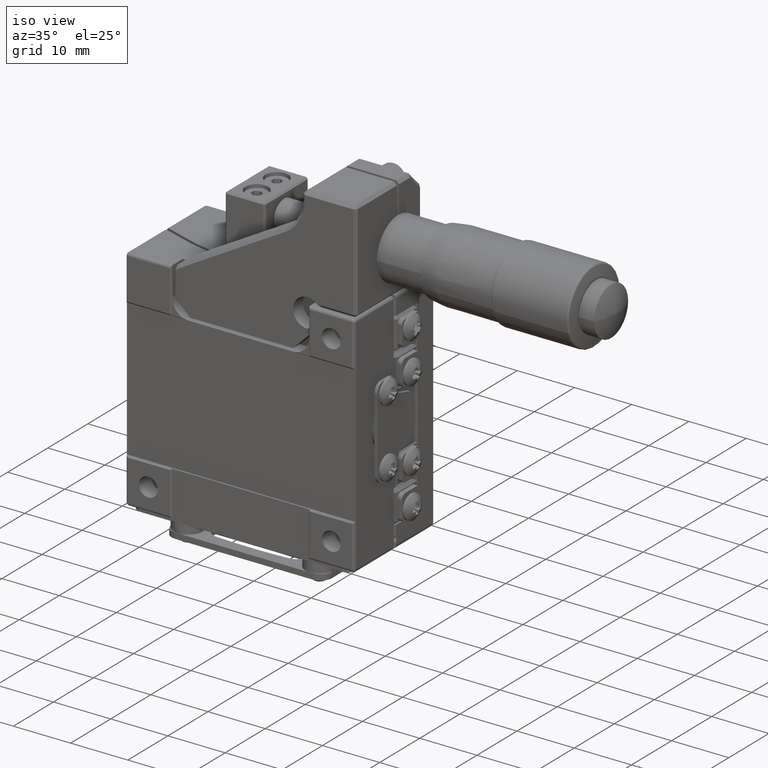
[diagram: clean part render]
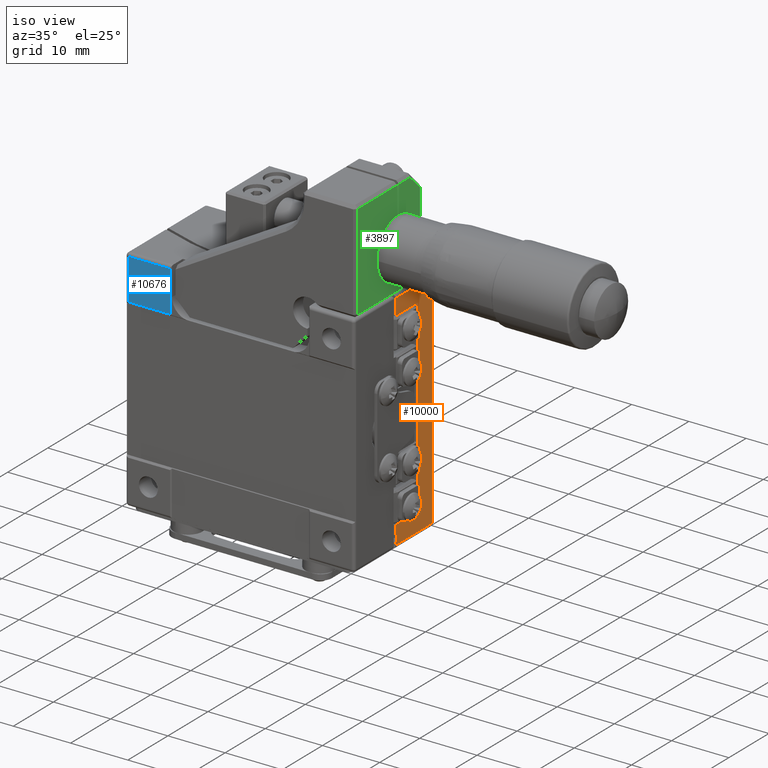
[diagram: same view with three faces highlighted in distinct colors, each labeled with its STEP entity id]
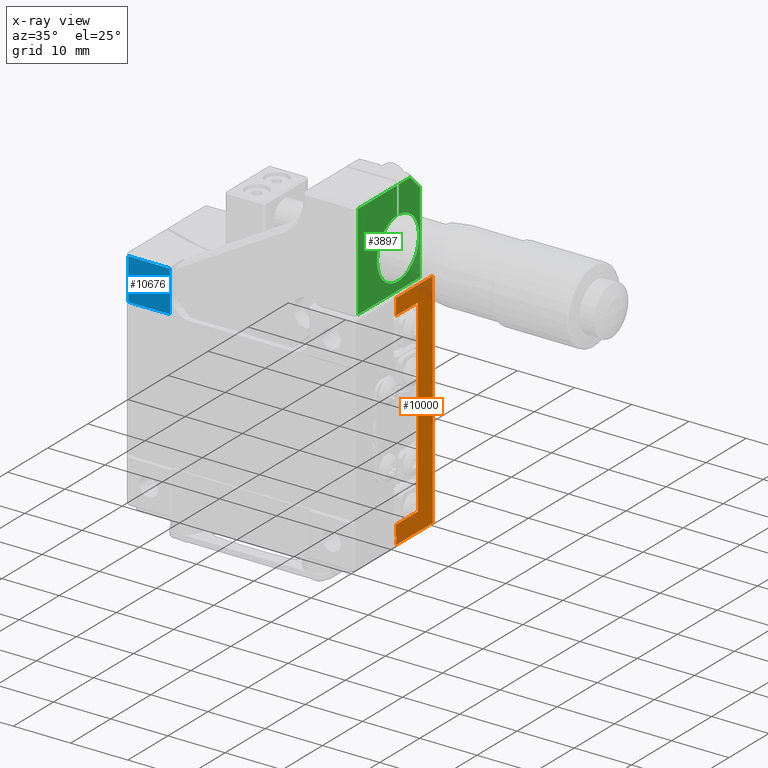
[diagram: x-ray of the same camera — body ghosted, the three highlighted faces saturated]
A machine part, iso view with three faces highlighted in distinct colors.
The next image is the same camera in x-ray (body ghosted, the three faces saturated) — at least one of them is partly hidden behind the body in this view.
Their STEP definitions:

[orange] entity #10000 — the highlighted planar face has unit normal (1, 0, 0).
#444 = LINE ( 'NONE', #16866, #43013 ) ;
#883 = CARTESIAN_POINT ( 'NONE',  ( 20.23052097740894695, -3.286285318551216417, -18.07069535098917257 ) ) ;
#2422 = DIRECTION ( 'NONE',  ( 0.000000000000000000, 1.000000000000000000, 0.000000000000000000 ) ) ;
#3019 = EDGE_CURVE ( 'NONE', #34072, #32164, #7965, .T. ) ;
#3056 = VERTEX_POINT ( 'NONE', #16825 ) ;
#3484 = DIRECTION ( 'NONE',  ( 0.000000000000000000, 0.000000000000000000, 1.000000000000000000 ) ) ;
#3493 = CARTESIAN_POINT ( 'NONE',  ( 20.23052097740894339, -3.208614427020371807, -18.55404601982977297 ) ) ;
#3654 = VECTOR ( 'NONE', #5808, 1000.000000000000000 ) ;
#3898 = ORIENTED_EDGE ( 'NONE', *, *, #4104, .T. ) ;
#4104 = EDGE_CURVE ( 'NONE', #27887, #32164, #24740, .T. ) ;
#4532 = LINE ( 'NONE', #9366, #5946 ) ;
#5269 = LINE ( 'NONE', #38653, #26385 ) ;
#5808 = DIRECTION ( 'NONE',  ( 0.000000000000000000, 0.000000000000000000, 1.000000000000000000 ) ) ;
#5946 = VECTOR ( 'NONE', #33621, 1000.000000000000000 ) ;
#6172 = CARTESIAN_POINT ( 'NONE',  ( 20.23052097740894695, 5.696749654218519865, -20.00000000000000000 ) ) ;
#6728 = CARTESIAN_POINT ( 'NONE',  ( 20.23052097740893984, -3.213274113322601711, -18.60755045568448196 ) ) ;
#7630 = ORIENTED_EDGE ( 'NONE', *, *, #3019, .F. ) ;
#7965 = LINE ( 'NONE', #37292, #24308 ) ;
#8084 = ORIENTED_EDGE ( 'NONE', *, *, #34866, .F. ) ;
#9366 = CARTESIAN_POINT ( 'NONE',  ( 20.23052097740894695, 2.012476433987770097, 20.00000000000000000 ) ) ;
#10000 = ADVANCED_FACE ( 'NONE', ( #37708 ), #18301, .T. ) ;
#10362 = VERTEX_POINT ( 'NONE', #22289 ) ;
#10428 = CARTESIAN_POINT ( 'NONE',  ( 20.23052097740894695, 5.696749654218519865, 19.50000000000000000 ) ) ;
#10520 = B_SPLINE_CURVE_WITH_KNOTS ( 'NONE', 3,
 ( #48417, #3493, #6728, #47882, #19107, #19921, #52481, #43838 ),
 .UNSPECIFIED., .F., .F.,
 ( 4, 2, 2, 4 ),
 ( 0.000000000000000000, 0.2500000000000001665, 0.5000000000000003331, 1.000000000000000000 ),
 .UNSPECIFIED. ) ;
#11847 = EDGE_CURVE ( 'NONE', #25445, #34167, #25463, .T. ) ;
#12525 = DIRECTION ( 'NONE',  ( 0.000000000000000000, 0.000000000000000000, 1.000000000000000000 ) ) ;
#14524 = VERTEX_POINT ( 'NONE', #44717 ) ;
#16532 = B_SPLINE_CURVE_WITH_KNOTS ( 'NONE', 3,
 ( #16762, #883, #33978, #33197 ),
 .UNSPECIFIED., .F., .F.,
 ( 4, 4 ),
 ( 0.000000000000000000, 1.000000000000000000 ),
 .UNSPECIFIED. ) ;
#16762 = CARTESIAN_POINT ( 'NONE',  ( 20.23052097740894695, -3.424314421433864997, -17.89999999999999858 ) ) ;
#16825 = CARTESIAN_POINT ( 'NONE',  ( 20.23052097740894695, -3.424314421433864997, -17.89999999999999858 ) ) ;
#16866 = CARTESIAN_POINT ( 'NONE',  ( 20.23052097740894695, -3.424314421433864997, 16.69999999999999929 ) ) ;
#17715 = EDGE_CURVE ( 'NONE', #10362, #14524, #5269, .T. ) ;
#17934 = ORIENTED_EDGE ( 'NONE', *, *, #17715, .F. ) ;
#18301 = PLANE ( 'NONE',  #33977 ) ;
#18915 = VECTOR ( 'NONE', #36053, 1000.000000000000000 ) ;
#19107 = CARTESIAN_POINT ( 'NONE',  ( 20.23052097740894695, -3.246293870153189154, -18.76701623548630948 ) ) ;
#19418 = CARTESIAN_POINT ( 'NONE',  ( 20.23052097740894695, -3.424314421433864997, 19.50000000000000000 ) ) ;
#19921 = CARTESIAN_POINT ( 'NONE',  ( 20.23052097740895405, -3.301004247635000333, -18.91929886286463258 ) ) ;
#20020 = CARTESIAN_POINT ( 'NONE',  ( 20.23052097740894695, -3.424314421433864997, -19.50000000000000000 ) ) ;
#21134 = ORIENTED_EDGE ( 'NONE', *, *, #43777, .F. ) ;
#21148 = CARTESIAN_POINT ( 'NONE',  ( 20.23052097740894695, 5.696749654218519865, -19.50000000000000000 ) ) ;
#21684 = CARTESIAN_POINT ( 'NONE',  ( 20.23052097740894695, -3.424314421433864997, -20.00000000000000000 ) ) ;
#22127 = VECTOR ( 'NONE', #34627, 1000.000000000000000 ) ;
#22159 = VECTOR ( 'NONE', #51657, 1000.000000000000000 ) ;
#22289 = CARTESIAN_POINT ( 'NONE',  ( 20.23052097740894695, -3.424314421433864997, -16.29999999999999716 ) ) ;
#22780 = LINE ( 'NONE', #42947, #22127 ) ;
#23910 = ORIENTED_EDGE ( 'NONE', *, *, #32977, .T. ) ;
#24308 = VECTOR ( 'NONE', #12525, 1000.000000000000000 ) ;
#24740 = LINE ( 'NONE', #48403, #18915 ) ;
#24875 = CARTESIAN_POINT ( 'NONE',  ( 20.23052097740894695, -3.424314421433860112, 16.69999999999999929 ) ) ;
#24918 = EDGE_CURVE ( 'NONE', #25445, #46589, #22780, .T. ) ;
#25201 = DIRECTION ( 'NONE',  ( 0.000000000000000000, -1.000000000000000000, 0.000000000000000000 ) ) ;
#25445 = VERTEX_POINT ( 'NONE', #20020 ) ;
#25463 = LINE ( 'NONE', #21684, #3654 ) ;
#25857 = CARTESIAN_POINT ( 'NONE',  ( 20.23052097740894695, -3.424314421433864997, -20.00000000000000000 ) ) ;
#26385 = VECTOR ( 'NONE', #50485, 1000.000000000000000 ) ;
#27887 = VERTEX_POINT ( 'NONE', #10428 ) ;
#28485 = VECTOR ( 'NONE', #3484, 1000.000000000000000 ) ;
#28742 = ORIENTED_EDGE ( 'NONE', *, *, #24918, .T. ) ;
#29258 = ORIENTED_EDGE ( 'NONE', *, *, #11847, .F. ) ;
#29418 = CARTESIAN_POINT ( 'NONE',  ( 20.23052097740894695, -3.424314421433935163, -19.09999999999999787 ) ) ;
#31138 = ORIENTED_EDGE ( 'NONE', *, *, #33541, .T. ) ;
#32164 = VERTEX_POINT ( 'NONE', #19418 ) ;
#32977 = EDGE_CURVE ( 'NONE', #3056, #52598, #16532, .T. ) ;
#33197 = CARTESIAN_POINT ( 'NONE',  ( 20.23052097740894695, -3.208614427020374915, -18.50000000000000000 ) ) ;
#33541 = EDGE_CURVE ( 'NONE', #46589, #27887, #35252, .T. ) ;
#33621 = DIRECTION ( 'NONE',  ( 0.000000000000000000, 0.000000000000000000, 1.000000000000000000 ) ) ;
#33673 = DIRECTION ( 'NONE',  ( 1.000000000000000000, 0.000000000000000000, 0.000000000000000000 ) ) ;
#33977 = AXIS2_PLACEMENT_3D ( 'NONE', #25857, #33673, #2422 ) ;
#33978 = CARTESIAN_POINT ( 'NONE',  ( 20.23052097740894695, -3.208614427020372251, -18.28061739433402266 ) ) ;
#34072 = VERTEX_POINT ( 'NONE', #24875 ) ;
#34167 = VERTEX_POINT ( 'NONE', #29418 ) ;
#34627 = DIRECTION ( 'NONE',  ( 0.000000000000000000, 1.000000000000000000, 0.000000000000000000 ) ) ;
#34866 = EDGE_CURVE ( 'NONE', #14524, #40898, #4532, .T. ) ;
#35252 = LINE ( 'NONE', #6172, #22159 ) ;
#36053 = DIRECTION ( 'NONE',  ( 0.000000000000000000, -1.000000000000000000, 0.000000000000000000 ) ) ;
#37292 = CARTESIAN_POINT ( 'NONE',  ( 20.23052097740894695, -3.424314421433864997, -20.00000000000000000 ) ) ;
#37708 = FACE_OUTER_BOUND ( 'NONE', #44609, .T. ) ;
#38156 = CARTESIAN_POINT ( 'NONE',  ( 20.23052097740894695, -3.208614427020374915, -18.50000000000000000 ) ) ;
#38653 = CARTESIAN_POINT ( 'NONE',  ( 20.23052097740894695, -3.424314421433864997, -16.29999999999999716 ) ) ;
#39540 = CARTESIAN_POINT ( 'NONE',  ( 20.23052097740894695, -3.424314421433864997, -20.00000000000000000 ) ) ;
#40898 = VERTEX_POINT ( 'NONE', #48818 ) ;
#41304 = ORIENTED_EDGE ( 'NONE', *, *, #46139, .F. ) ;
#42084 = EDGE_CURVE ( 'NONE', #52598, #34167, #10520, .T. ) ;
#42947 = CARTESIAN_POINT ( 'NONE',  ( 20.23052097740894695, 6.196749654218518977, -19.50000000000000000 ) ) ;
#43013 = VECTOR ( 'NONE', #25201, 1000.000000000000000 ) ;
#43777 = EDGE_CURVE ( 'NONE', #40898, #34072, #444, .T. ) ;
#43838 = CARTESIAN_POINT ( 'NONE',  ( 20.23052097740894695, -3.424314421433935163, -19.09999999999999787 ) ) ;
#44609 = EDGE_LOOP ( 'NONE', ( #8084, #17934, #41304, #23910, #52098, #29258, #28742, #31138, #3898, #7630, #21134 ) ) ;
#44717 = CARTESIAN_POINT ( 'NONE',  ( 20.23052097740894695, 2.012476433987770097, -16.29999999999999716 ) ) ;
#46139 = EDGE_CURVE ( 'NONE', #3056, #10362, #48675, .T. ) ;
#46589 = VERTEX_POINT ( 'NONE', #21148 ) ;
#47882 = CARTESIAN_POINT ( 'NONE',  ( 20.23052097740893984, -3.231912858531518662, -18.71347615944412723 ) ) ;
#48403 = CARTESIAN_POINT ( 'NONE',  ( 20.23052097740894695, -3.424314421433864997, 19.50000000000000000 ) ) ;
#48417 = CARTESIAN_POINT ( 'NONE',  ( 20.23052097740894695, -3.208614427020374915, -18.50000000000000000 ) ) ;
#48675 = LINE ( 'NONE', #39540, #28485 ) ;
#48818 = CARTESIAN_POINT ( 'NONE',  ( 20.23052097740894695, 2.012476433987770097, 16.69999999999999929 ) ) ;
#50485 = DIRECTION ( 'NONE',  ( 0.000000000000000000, 1.000000000000000000, 0.000000000000000000 ) ) ;
#51657 = DIRECTION ( 'NONE',  ( 0.000000000000000000, 0.000000000000000000, 1.000000000000000000 ) ) ;
#52098 = ORIENTED_EDGE ( 'NONE', *, *, #42084, .T. ) ;
#52481 = CARTESIAN_POINT ( 'NONE',  ( 20.23052097740894339, -3.354265500563936353, -19.01337315910495818 ) ) ;
#52598 = VERTEX_POINT ( 'NONE', #38156 ) ;

[blue] entity #10676 — the highlighted planar face has unit normal (0, -1, 0).
#3261 = VERTEX_POINT ( 'NONE', #39652 ) ;
#4899 = VECTOR ( 'NONE', #10250, 1000.000000000000000 ) ;
#6568 = CARTESIAN_POINT ( 'NONE',  ( -11.96947902259105945, -13.80325034578148014, -20.00000000000000000 ) ) ;
#9702 = CARTESIAN_POINT ( 'NONE',  ( 20.23052097740894695, -13.80325034578146060, 12.30000000000000071 ) ) ;
#10250 = DIRECTION ( 'NONE',  ( -1.000000000000000000, -2.312964634635744929E-16, 0.000000000000000000 ) ) ;
#10431 = DIRECTION ( 'NONE',  ( 0.000000000000000000, 0.000000000000000000, -1.000000000000000000 ) ) ;
#10676 = ADVANCED_FACE ( 'NONE', ( #13341 ), #21675, .T. ) ;
#13341 = FACE_OUTER_BOUND ( 'NONE', #16424, .T. ) ;
#14208 = CARTESIAN_POINT ( 'NONE',  ( -19.26947902259104950, -13.80325034578148014, -20.00000000000000000 ) ) ;
#14230 = AXIS2_PLACEMENT_3D ( 'NONE', #25457, #37851, #45880 ) ;
#14448 = VERTEX_POINT ( 'NONE', #22688 ) ;
#14916 = DIRECTION ( 'NONE',  ( 0.000000000000000000, 0.000000000000000000, 1.000000000000000000 ) ) ;
#16424 = EDGE_LOOP ( 'NONE', ( #23648, #21420, #16752, #24587 ) ) ;
#16752 = ORIENTED_EDGE ( 'NONE', *, *, #34992, .T. ) ;
#18789 = LINE ( 'NONE', #14208, #51508 ) ;
#19215 = LINE ( 'NONE', #6568, #53036 ) ;
#19480 = CARTESIAN_POINT ( 'NONE',  ( -11.96947902259105945, -13.80325034578148014, 19.50000000000000000 ) ) ;
#21420 = ORIENTED_EDGE ( 'NONE', *, *, #52191, .T. ) ;
#21675 = PLANE ( 'NONE',  #14230 ) ;
#22140 = VECTOR ( 'NONE', #38777, 1000.000000000000000 ) ;
#22688 = CARTESIAN_POINT ( 'NONE',  ( -19.26947902259104950, -13.80325034578148014, 19.50000000000000000 ) ) ;
#23648 = ORIENTED_EDGE ( 'NONE', *, *, #32692, .T. ) ;
#24580 = CARTESIAN_POINT ( 'NONE',  ( -19.26947902259104950, -13.80325034578148014, 12.30000000000000071 ) ) ;
#24587 = ORIENTED_EDGE ( 'NONE', *, *, #24609, .F. ) ;
#24609 = EDGE_CURVE ( 'NONE', #3261, #38553, #47117, .T. ) ;
#25457 = CARTESIAN_POINT ( 'NONE',  ( -19.76947902259104950, -13.80325034578148014, -20.00000000000000000 ) ) ;
#25492 = VERTEX_POINT ( 'NONE', #19480 ) ;
#26127 = LINE ( 'NONE', #50339, #22140 ) ;
#32692 = EDGE_CURVE ( 'NONE', #3261, #25492, #19215, .T. ) ;
#34992 = EDGE_CURVE ( 'NONE', #14448, #38553, #18789, .T. ) ;
#37851 = DIRECTION ( 'NONE',  ( 1.734723475976804876E-16, -1.000000000000000000, 0.000000000000000000 ) ) ;
#38553 = VERTEX_POINT ( 'NONE', #24580 ) ;
#38777 = DIRECTION ( 'NONE',  ( -1.000000000000000000, -1.734723475976804876E-16, 0.000000000000000000 ) ) ;
#39652 = CARTESIAN_POINT ( 'NONE',  ( -11.96947902259103991, -13.80325034578148014, 12.30000000000000071 ) ) ;
#45880 = DIRECTION ( 'NONE',  ( 0.000000000000000000, 0.000000000000000000, -1.000000000000000000 ) ) ;
#47117 = LINE ( 'NONE', #9702, #4899 ) ;
#50339 = CARTESIAN_POINT ( 'NONE',  ( -19.76947902259104950, -13.80325034578148014, 19.50000000000000000 ) ) ;
#51508 = VECTOR ( 'NONE', #10431, 1000.000000000000000 ) ;
#52191 = EDGE_CURVE ( 'NONE', #25492, #14448, #26127, .T. ) ;
#53036 = VECTOR ( 'NONE', #14916, 1000.000000000000000 ) ;

[green] entity #3897 — the highlighted planar face has unit normal (-1, 0, -0).
#5 = ORIENTED_EDGE ( 'NONE', *, *, #5908, .T. ) ;
#169 = EDGE_CURVE ( 'NONE', #15896, #21938, #52423, .T. ) ;
#548 = DIRECTION ( 'NONE',  ( 0.000000000000000000, -1.000000000000000000, 0.000000000000000000 ) ) ;
#1297 = DIRECTION ( 'NONE',  ( 1.343422115225469913E-32, 1.000000000000000000, -1.445602896647339903E-16 ) ) ;
#2033 = CARTESIAN_POINT ( 'NONE',  ( 20.23052097740874800, -12.90325034578147978, 20.50000000000000000 ) ) ;
#2426 = CARTESIAN_POINT ( 'NONE',  ( 20.23052097740874800, 0.08964287303193579914, 37.20170592217080241 ) ) ;
#2924 = CARTESIAN_POINT ( 'NONE',  ( 20.23052097740859878, -2.903250345781485109, 27.20170592217100136 ) ) ;
#3541 = LINE ( 'NONE', #19975, #50505 ) ;
#3861 = EDGE_CURVE ( 'NONE', #47135, #30293, #30413, .T. ) ;
#3897 = ADVANCED_FACE ( 'NONE', ( #47339 ), #10470, .F. ) ;
#5264 = DIRECTION ( 'NONE',  ( -9.293161478447179278E-17, 0.000000000000000000, 1.000000000000000000 ) ) ;
#5430 = ORIENTED_EDGE ( 'NONE', *, *, #27878, .T. ) ;
#5881 = VERTEX_POINT ( 'NONE', #19534 ) ;
#5908 = EDGE_CURVE ( 'NONE', #30293, #29347, #6876, .T. ) ;
#5914 = DIRECTION ( 'NONE',  ( -1.000000000000000000, 0.000000000000000000, -9.293161478447179278E-17 ) ) ;
#6164 = DIRECTION ( 'NONE',  ( -1.000000000000000000, 0.000000000000000000, 6.106226608968590048E-15 ) ) ;
#6168 = DIRECTION ( 'NONE',  ( -9.293161478447179278E-17, 0.000000000000000000, 1.000000000000000000 ) ) ;
#6384 = CARTESIAN_POINT ( 'NONE',  ( 20.23052097740874800, 3.096749654218525105, 20.50000000000000000 ) ) ;
#6782 = LINE ( 'NONE', #31832, #27165 ) ;
#6876 = LINE ( 'NONE', #14691, #29265 ) ;
#6918 = ORIENTED_EDGE ( 'NONE', *, *, #31654, .T. ) ;
#7206 = VERTEX_POINT ( 'NONE', #32976 ) ;
#10154 = CIRCLE ( 'NONE', #46974, 5.250000000000000000 ) ;
#10467 = DIRECTION ( 'NONE',  ( 0.000000000000000000, 1.000000000000000000, 0.000000000000000000 ) ) ;
#10470 = PLANE ( 'NONE',  #31813 ) ;
#10610 = ORIENTED_EDGE ( 'NONE', *, *, #169, .T. ) ;
#12519 = DIRECTION ( 'NONE',  ( 0.000000000000000000, 1.000000000000000000, 0.000000000000000000 ) ) ;
#12732 = LINE ( 'NONE', #29153, #32226 ) ;
#12946 = VECTOR ( 'NONE', #1297, 1000.000000000000000 ) ;
#14691 = CARTESIAN_POINT ( 'NONE',  ( 20.23052097740874800, -12.90325034578147978, 18.70170592217079886 ) ) ;
#15896 = VERTEX_POINT ( 'NONE', #39573 ) ;
#16818 = VERTEX_POINT ( 'NONE', #52289 ) ;
#17089 = CARTESIAN_POINT ( 'NONE',  ( 20.23052097740859878, -2.903250345781485109, 27.20170592217100136 ) ) ;
#17230 = CARTESIAN_POINT ( 'NONE',  ( 20.23052097740874800, -13.40325034578147978, 37.20170592217080241 ) ) ;
#18753 = CARTESIAN_POINT ( 'NONE',  ( 20.23052097740874800, 2.596749654218525105, 34.69459914098420228 ) ) ;
#19534 = CARTESIAN_POINT ( 'NONE',  ( 20.23052097740859878, -8.153250345781478003, 27.20170592217069938 ) ) ;
#19975 = CARTESIAN_POINT ( 'NONE',  ( 20.23052097740874800, -2.653250345781475339, 37.20170592217080241 ) ) ;
#20197 = LINE ( 'NONE', #32587, #39557 ) ;
#20301 = DIRECTION ( 'NONE',  ( 9.293161478447179278E-17, 0.000000000000000000, -1.000000000000000000 ) ) ;
#20605 = EDGE_CURVE ( 'NONE', #47135, #16818, #12732, .T. ) ;
#21938 = VERTEX_POINT ( 'NONE', #22939 ) ;
#21979 = EDGE_CURVE ( 'NONE', #31274, #34555, #6782, .T. ) ;
#22335 = ORIENTED_EDGE ( 'NONE', *, *, #20605, .F. ) ;
#22939 = CARTESIAN_POINT ( 'NONE',  ( 20.23052097740859878, 2.346749654218514891, 27.20170592217069938 ) ) ;
#23304 = DIRECTION ( 'NONE',  ( 9.293161478447179278E-17, 0.000000000000000000, -1.000000000000000000 ) ) ;
#24370 = ORIENTED_EDGE ( 'NONE', *, *, #25140, .T. ) ;
#25140 = EDGE_CURVE ( 'NONE', #7206, #31274, #45332, .T. ) ;
#27165 = VECTOR ( 'NONE', #35051, 999.9999999999998863 ) ;
#27878 = EDGE_CURVE ( 'NONE', #29347, #7206, #38707, .T. ) ;
#29153 = CARTESIAN_POINT ( 'NONE',  ( 20.23052097740874800, -3.153250345781475339, 39.03977847505665011 ) ) ;
#29213 = AXIS2_PLACEMENT_3D ( 'NONE', #2924, #6164, #10467 ) ;
#29219 = VECTOR ( 'NONE', #548, 1000.000000000000000 ) ;
#29249 = EDGE_CURVE ( 'NONE', #15896, #40185, #20197, .T. ) ;
#29265 = VECTOR ( 'NONE', #23304, 1000.000000000000000 ) ;
#29347 = VERTEX_POINT ( 'NONE', #2033 ) ;
#29696 = CARTESIAN_POINT ( 'NONE',  ( 20.23052097740874800, -3.153250345781475339, 37.20170592217080241 ) ) ;
#30293 = VERTEX_POINT ( 'NONE', #39828 ) ;
#30413 = LINE ( 'NONE', #17230, #29219 ) ;
#31274 = VERTEX_POINT ( 'NONE', #18753 ) ;
#31654 = EDGE_CURVE ( 'NONE', #21938, #5881, #36589, .T. ) ;
#31813 = AXIS2_PLACEMENT_3D ( 'NONE', #35246, #5914, #6168 ) ;
#31829 = DIRECTION ( 'NONE',  ( 0.000000000000000000, -1.000000000000000000, 0.000000000000000000 ) ) ;
#31832 = CARTESIAN_POINT ( 'NONE',  ( 20.23052097740874800, -0.05680373637479380067, 37.34815253157749737 ) ) ;
#32226 = VECTOR ( 'NONE', #20301, 1000.000000000000000 ) ;
#32587 = CARTESIAN_POINT ( 'NONE',  ( 20.23052097740874800, -2.653250345781475339, 39.03977847505665011 ) ) ;
#32976 = CARTESIAN_POINT ( 'NONE',  ( 20.23052097740874800, 2.596749654218525105, 20.50000000000000000 ) ) ;
#33399 = DIRECTION ( 'NONE',  ( 0.000000000000000000, 1.000000000000000000, 0.000000000000000000 ) ) ;
#33896 = ORIENTED_EDGE ( 'NONE', *, *, #21979, .T. ) ;
#34555 = VERTEX_POINT ( 'NONE', #2426 ) ;
#35051 = DIRECTION ( 'NONE',  ( -6.571257500071568584E-17, -0.7071067811865510144, 0.7071067811865441310 ) ) ;
#35246 = CARTESIAN_POINT ( 'NONE',  ( 20.23052097740874800, 3.096749654218525105, 18.70170592217079886 ) ) ;
#36589 = CIRCLE ( 'NONE', #45159, 5.250000000000000000 ) ;
#36842 = ORIENTED_EDGE ( 'NONE', *, *, #40158, .T. ) ;
#36991 = EDGE_LOOP ( 'NONE', ( #10610, #6918, #40276, #22335, #51526, #5, #5430, #24370, #33896, #36842, #43561 ) ) ;
#37425 = CARTESIAN_POINT ( 'NONE',  ( 20.23052097740859878, -2.903250345781485109, 27.20170592217100136 ) ) ;
#38707 = LINE ( 'NONE', #6384, #12946 ) ;
#39557 = VECTOR ( 'NONE', #5264, 1000.000000000000000 ) ;
#39573 = CARTESIAN_POINT ( 'NONE',  ( 20.23052097740874800, -2.653250345781475339, 32.44575016302174220 ) ) ;
#39828 = CARTESIAN_POINT ( 'NONE',  ( 20.23052097740874800, -12.90325034578147978, 37.20170592217080241 ) ) ;
#40158 = EDGE_CURVE ( 'NONE', #34555, #40185, #3541, .T. ) ;
#40185 = VERTEX_POINT ( 'NONE', #41442 ) ;
#40276 = ORIENTED_EDGE ( 'NONE', *, *, #52250, .T. ) ;
#41442 = CARTESIAN_POINT ( 'NONE',  ( 20.23052097740874800, -2.653250345781475339, 37.20170592217080241 ) ) ;
#42082 = DIRECTION ( 'NONE',  ( -1.000000000000000000, 0.000000000000000000, 6.106226608968590048E-15 ) ) ;
#43561 = ORIENTED_EDGE ( 'NONE', *, *, #29249, .F. ) ;
#45053 = DIRECTION ( 'NONE',  ( -9.293161478447179278E-17, 0.000000000000000000, 1.000000000000000000 ) ) ;
#45159 = AXIS2_PLACEMENT_3D ( 'NONE', #17089, #42082, #12519 ) ;
#45332 = LINE ( 'NONE', #46111, #46195 ) ;
#45741 = DIRECTION ( 'NONE',  ( -1.000000000000000000, 0.000000000000000000, 6.106226608968590048E-15 ) ) ;
#46111 = CARTESIAN_POINT ( 'NONE',  ( 20.23052097740874800, 2.596749654218525105, 34.90170592217075551 ) ) ;
#46195 = VECTOR ( 'NONE', #45053, 1000.000000000000000 ) ;
#46974 = AXIS2_PLACEMENT_3D ( 'NONE', #37425, #45741, #33399 ) ;
#47135 = VERTEX_POINT ( 'NONE', #29696 ) ;
#47339 = FACE_OUTER_BOUND ( 'NONE', #36991, .T. ) ;
#50505 = VECTOR ( 'NONE', #31829, 1000.000000000000000 ) ;
#51526 = ORIENTED_EDGE ( 'NONE', *, *, #3861, .T. ) ;
#52250 = EDGE_CURVE ( 'NONE', #5881, #16818, #10154, .T. ) ;
#52289 = CARTESIAN_POINT ( 'NONE',  ( 20.23052097740864852, -3.153250345781480224, 32.44575016302174220 ) ) ;
#52423 = CIRCLE ( 'NONE', #29213, 5.250000000000000000 ) ;